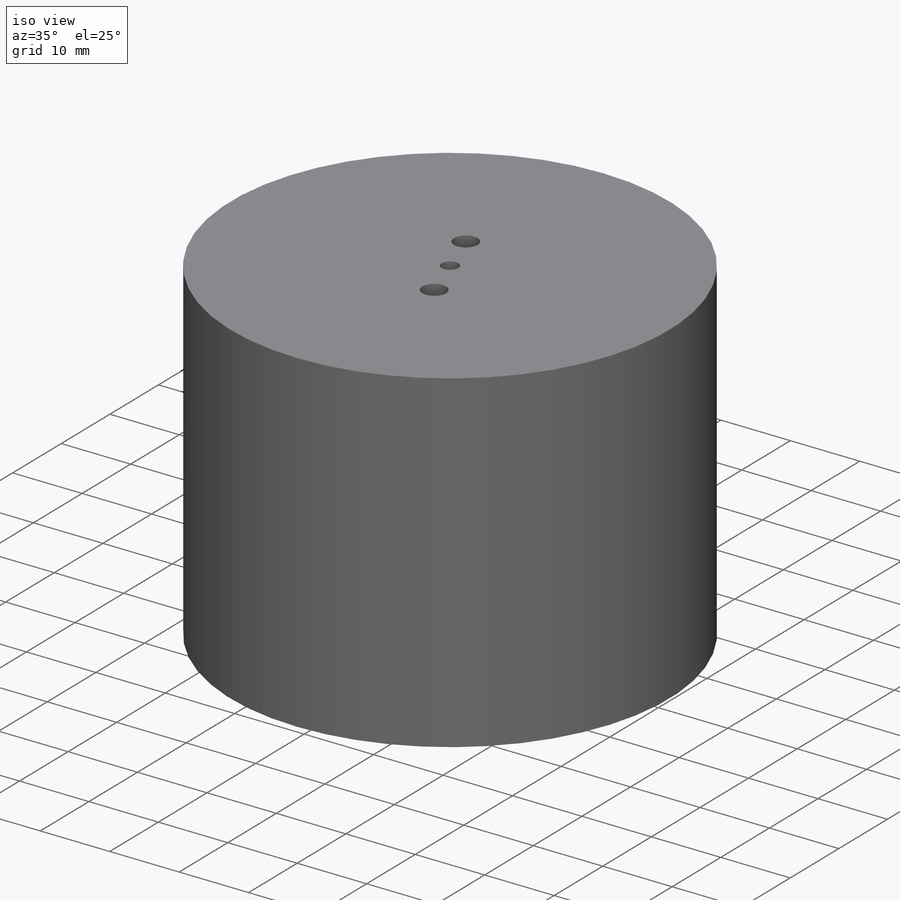
[diagram: iso view]
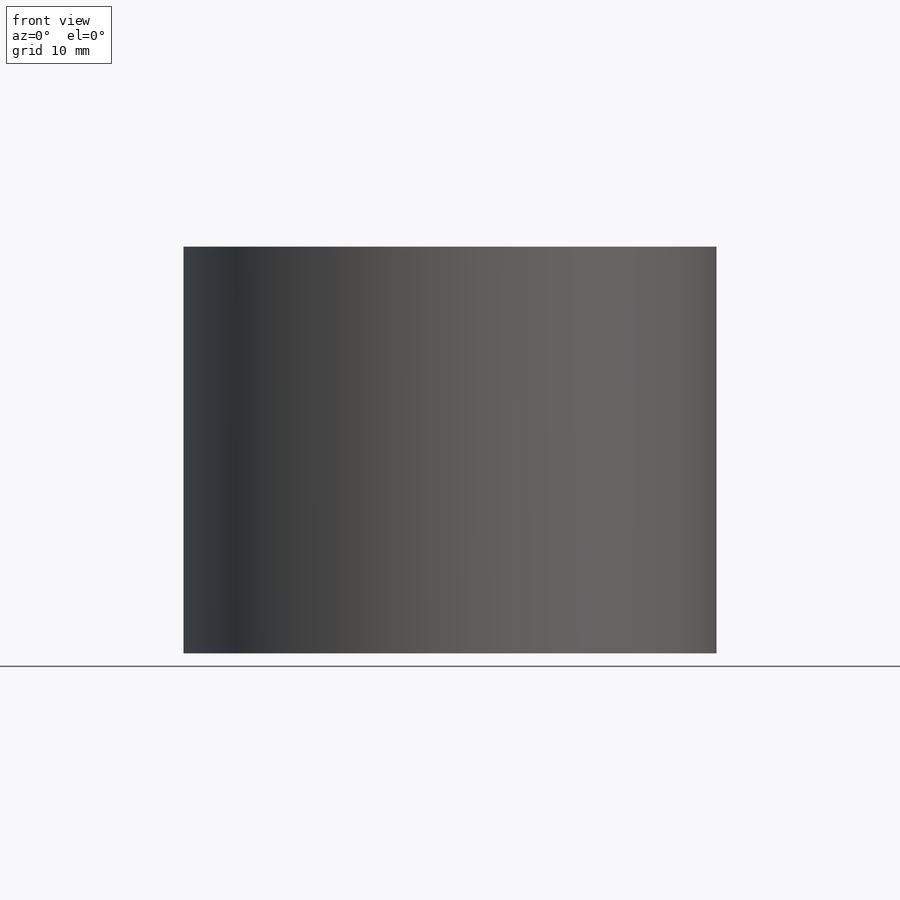
[diagram: front view]
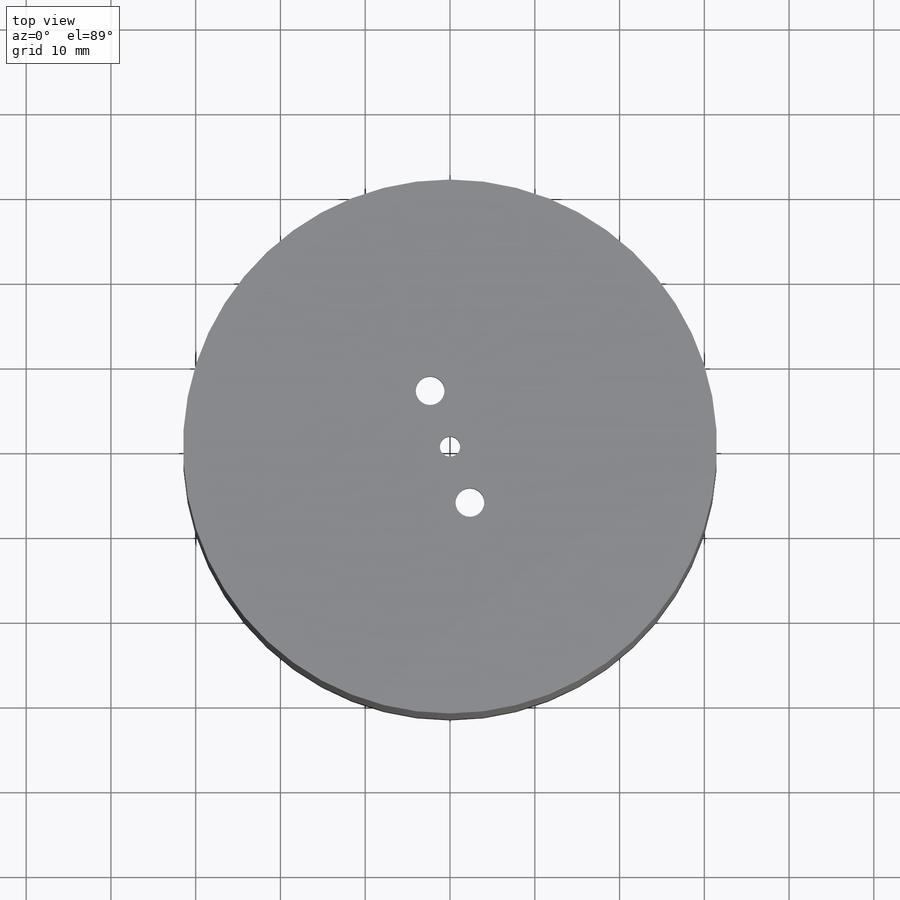
[diagram: top view]
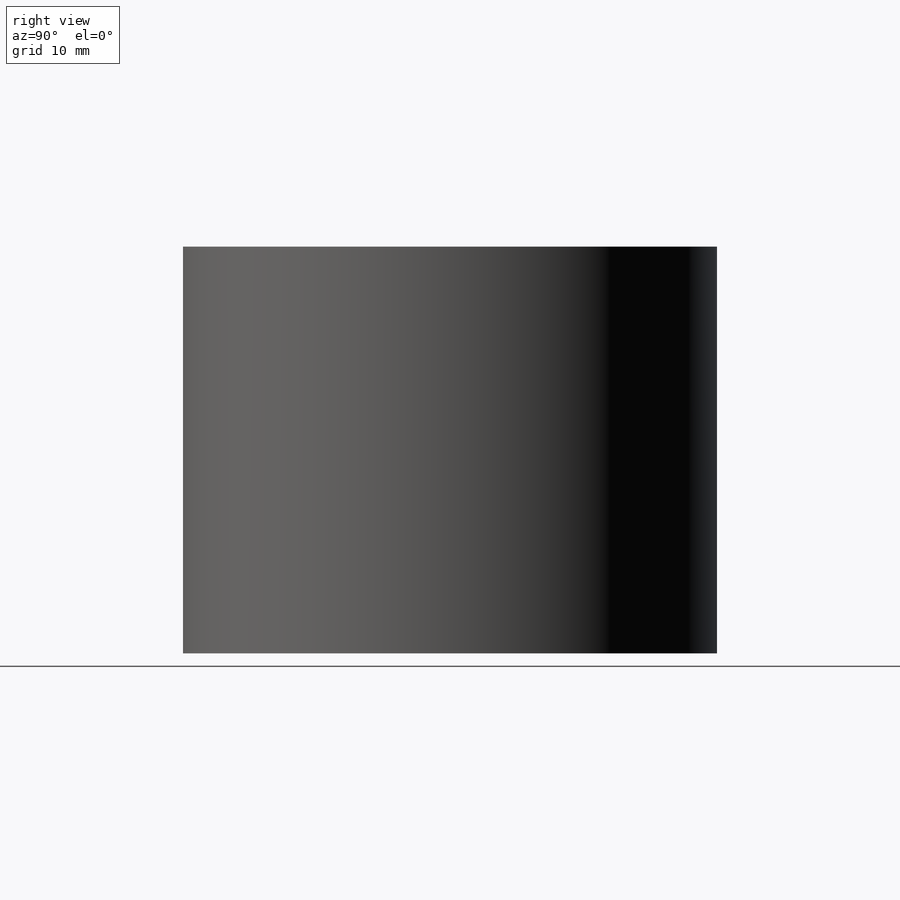
[diagram: right view]
SOLIDWORKS PART (.sldprt)
format: sldprt  version: not decoded by parser v0  size: 176,128 bytes
history: native  units: mm
features: sketch x10, cut_extrude x2, material x1, extrude x1, hole x1 + 1 further entry (+11 scaffold rows collapsed)
feature tree (27):
  scaffold x11  (default folders/planes/origin — collapsed)
  material  "Material <not specified>"
  "Annotations"  RD1=5mm
  sketch  "Sketch3"  dims[D1=53.0mm]
  sketch  "Sketch4"  dims[D1=5.0mm]
  extrude  "Boss-Extrude2"  Depth=48mm
  cut_extrude  "Cut-Extrude1"  Depth=43mm
  sketch  "Sketch5"
  sketch  "Sketch7"
  hole  "M3 Clearance Hole1"  Diameter=3.4mm Depth=50mm
  sketch  "Sketch9"  dims[c1.D1=7.0mm c1.D2=7.0mm c2.D1=7.0mm c2.D2=7.0mm c2.D3=7.0mm c3.D3=180.0deg]
  sketch  "Sketch8"  dims[hole-wizard template sketch: 47 standard entries collapsed; hole parameters kept: c15.Hole Depth=50.0mm c15.D3=~14.816244mm c15.Drill Angle=118.0deg]
  sketch  "Sketch10"  dims[D1=~3.965195mm]
  cut_extrude  "Cut-Extrude2"  Depth=10mm
  sketch  "Sketch11"
  sketch  "Sketch12"  dims[D1=10.0mm D2=30.0mm]
  sketch  "Sketch13"  dims[D1=10.0mm]
decode coverage: 11 of 14 modeling features carry decoded parameters; 1 rows unclassified (native names shown)
note: ~ marks probable driven/reference dimensions
note: suppression state not decoded; provenance and decode notes live in map.json
